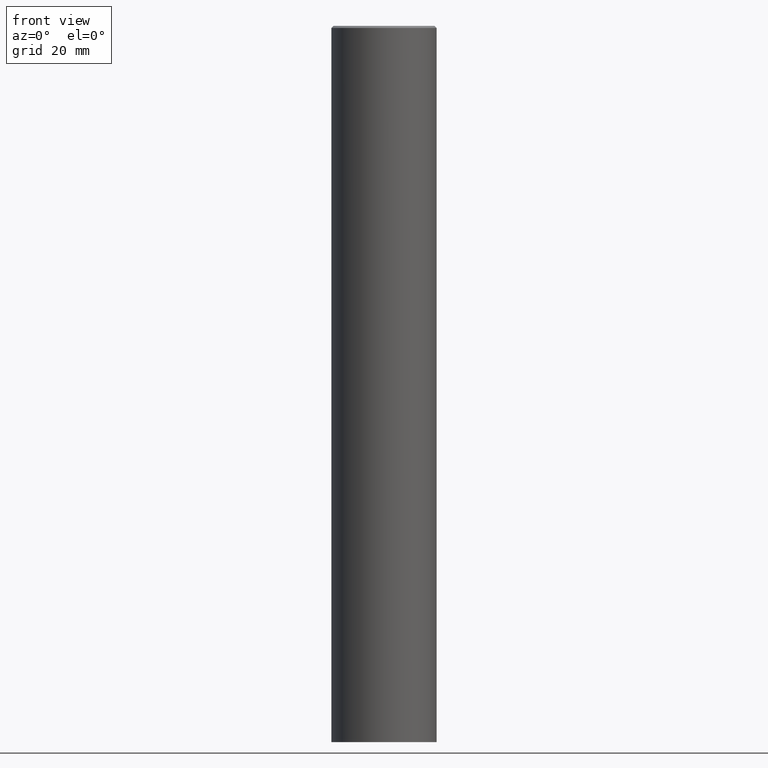
[diagram: clean part render]
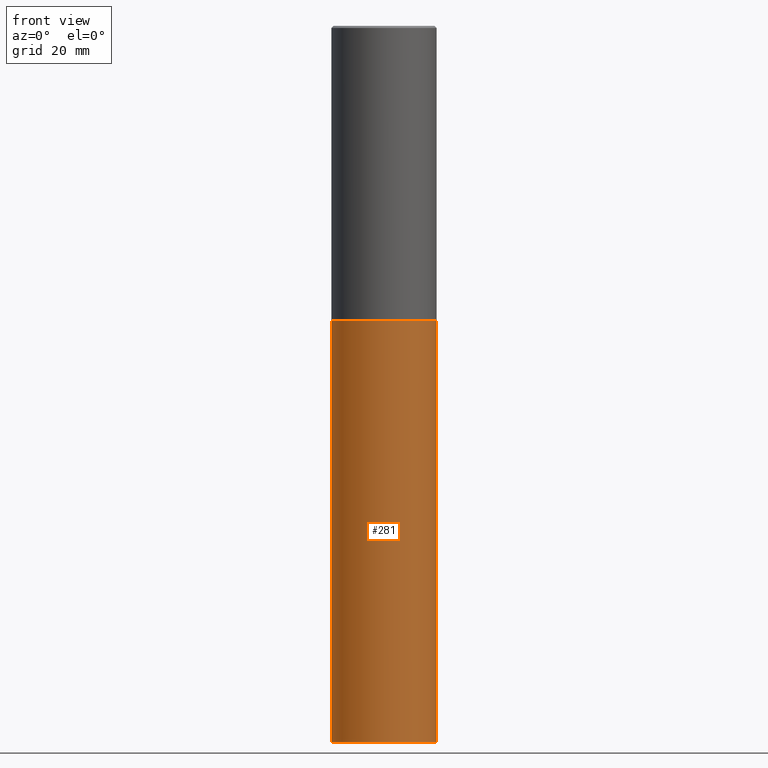
[diagram: same view with one face highlighted and labeled with its STEP entity id]
A machine part, front view. The second image highlights one B-rep face of the part: STEP entity #281.
In plain terms, the highlighted cylindrical surface (partial cylindrical patch) has radius 12.5006 mm, axis along (-0, 0, 1).
Its self-contained STEP definition (entity closure, byte-faithful):
#6 = VECTOR ( 'NONE', #168, 39.37007874015748143 ) ;
#27 = EDGE_CURVE ( 'NONE', #348, #292, #134, .T. ) ;
#33 = EDGE_CURVE ( 'NONE', #70, #236, #191, .T. ) ;
#35 = ORIENTED_EDGE ( 'NONE', *, *, #275, .F. ) ;
#66 = CARTESIAN_POINT ( 'NONE',  ( -0.4921499999999999764, -1.299821836318722399E-14, -2.755900000000000016 ) ) ;
#70 = VERTEX_POINT ( 'NONE', #66 ) ;
#91 = DIRECTION ( 'NONE',  ( -2.445468806185136597E-29, 3.491481338843145583E-15, 1.000000000000000000 ) ) ;
#101 = AXIS2_PLACEMENT_3D ( 'NONE', #103, #304, #222 ) ;
#103 = CARTESIAN_POINT ( 'NONE',  ( 6.739467482965618232E-29, -9.622173421717824390E-15, -2.755900000000000016 ) ) ;
#114 = CYLINDRICAL_SURFACE ( 'NONE', #229, 0.4921499999999999764 ) ;
#116 = FACE_OUTER_BOUND ( 'NONE', #317, .T. ) ;
#118 = DIRECTION ( 'NONE',  ( 1.000000000000000000, -6.982962677686265922E-15, 4.876176775795935793E-29 ) ) ;
#125 = ORIENTED_EDGE ( 'NONE', *, *, #33, .F. ) ;
#134 = CIRCLE ( 'NONE', #311, 0.4921499999999999764 ) ;
#143 = EDGE_CURVE ( 'NONE', #292, #236, #193, .T. ) ;
#147 = CARTESIAN_POINT ( 'NONE',  ( -0.4921499999999999764, -1.299821836318722399E-14, -6.692899999999999849 ) ) ;
#153 = ORIENTED_EDGE ( 'NONE', *, *, #27, .T. ) ;
#168 = DIRECTION ( 'NONE',  ( -2.445468806185136877E-29, 3.491481338843145188E-15, 1.000000000000000000 ) ) ;
#171 = CARTESIAN_POINT ( 'NONE',  ( 0.4921499999999999764, -2.680480053456658516E-14, -6.692899999999999849 ) ) ;
#172 = ORIENTED_EDGE ( 'NONE', *, *, #143, .T. ) ;
#186 = DIRECTION ( 'NONE',  ( 1.000000000000000000, -6.982962677686265922E-15, 0.000000000000000000 ) ) ;
#191 = CIRCLE ( 'NONE', #101, 0.4921499999999999764 ) ;
#193 = LINE ( 'NONE', #227, #6 ) ;
#222 = DIRECTION ( 'NONE',  ( 1.000000000000000000, -6.982962677686265922E-15, 0.000000000000000000 ) ) ;
#227 = CARTESIAN_POINT ( 'NONE',  ( 0.4921499999999999764, -3.436665081823295777E-15, 2.399810400207969603E-29 ) ) ;
#228 = LINE ( 'NONE', #338, #242 ) ;
#229 = AXIS2_PLACEMENT_3D ( 'NONE', #267, #91, #118 ) ;
#236 = VERTEX_POINT ( 'NONE', #334 ) ;
#242 = VECTOR ( 'NONE', #293, 39.37007874015748143 ) ;
#267 = CARTESIAN_POINT ( 'NONE',  ( 0.000000000000000000, 0.000000000000000000, 0.000000000000000000 ) ) ;
#275 = EDGE_CURVE ( 'NONE', #348, #70, #228, .T. ) ;
#281 = ADVANCED_FACE ( 'NONE', ( #116 ), #114, .T. ) ;
#292 = VERTEX_POINT ( 'NONE', #171 ) ;
#293 = DIRECTION ( 'NONE',  ( -2.445468806185136877E-29, 3.491481338843145188E-15, 1.000000000000000000 ) ) ;
#304 = DIRECTION ( 'NONE',  ( -2.445468806185136597E-29, 3.491481338843145583E-15, 1.000000000000000000 ) ) ;
#311 = AXIS2_PLACEMENT_3D ( 'NONE', #363, #362, #186 ) ;
#317 = EDGE_LOOP ( 'NONE', ( #35, #153, #172, #125 ) ) ;
#334 = CARTESIAN_POINT ( 'NONE',  ( 0.4921499999999999764, -1.305883850354112017E-14, -2.755900000000000016 ) ) ;
#338 = CARTESIAN_POINT ( 'NONE',  ( -0.4921499999999999764, 3.496936074043332897E-15, -2.420853904668951509E-29 ) ) ;
#348 = VERTEX_POINT ( 'NONE', #147 ) ;
#362 = DIRECTION ( 'NONE',  ( -2.445468806185136597E-29, 3.491481338843145583E-15, 1.000000000000000000 ) ) ;
#363 = CARTESIAN_POINT ( 'NONE',  ( 1.636727817291649966E-28, -2.336813545274328780E-14, -6.692899999999999849 ) ) ;